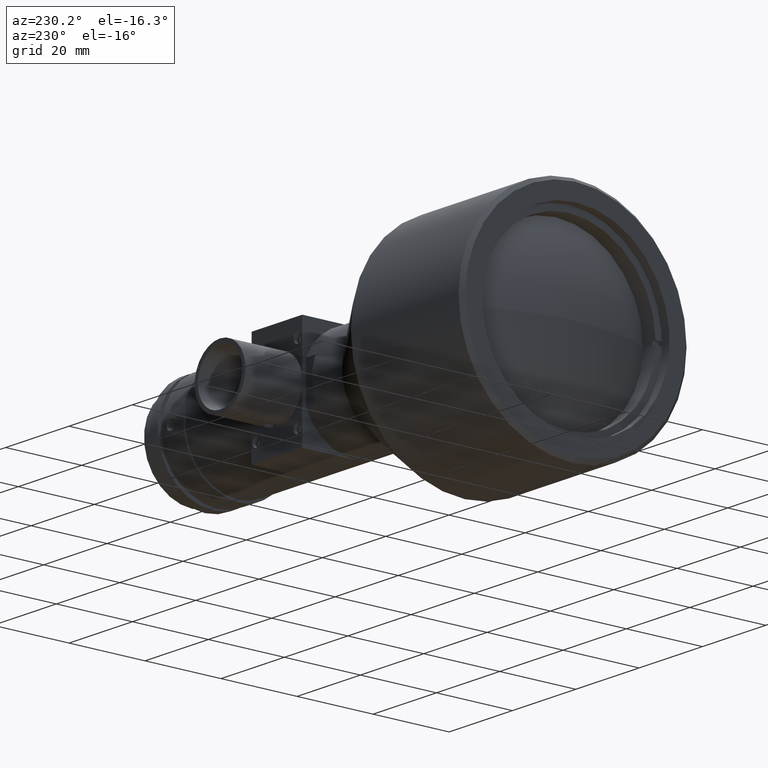
[diagram: clean part render]
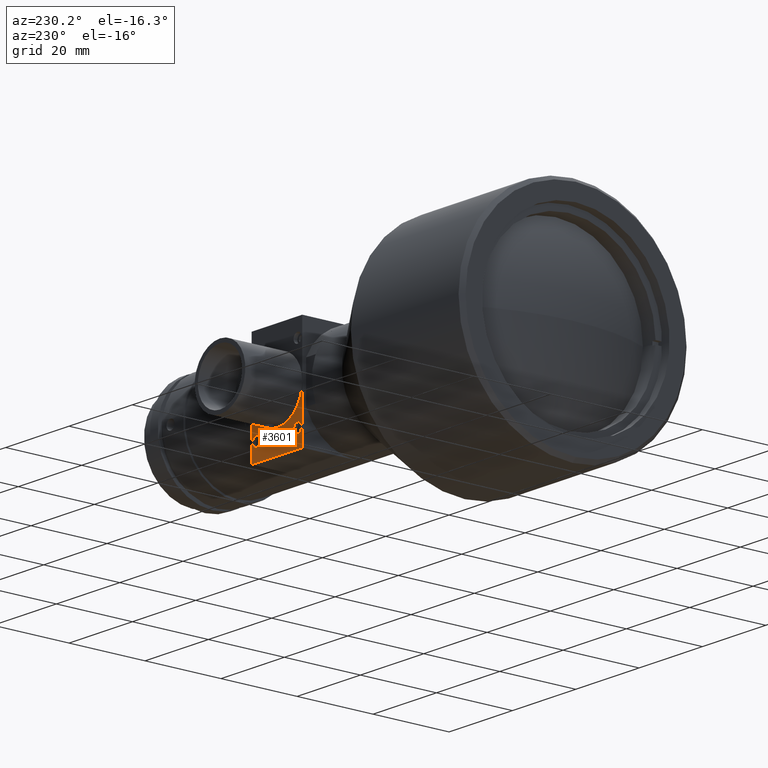
[diagram: same view with one face highlighted and labeled with its STEP entity id]
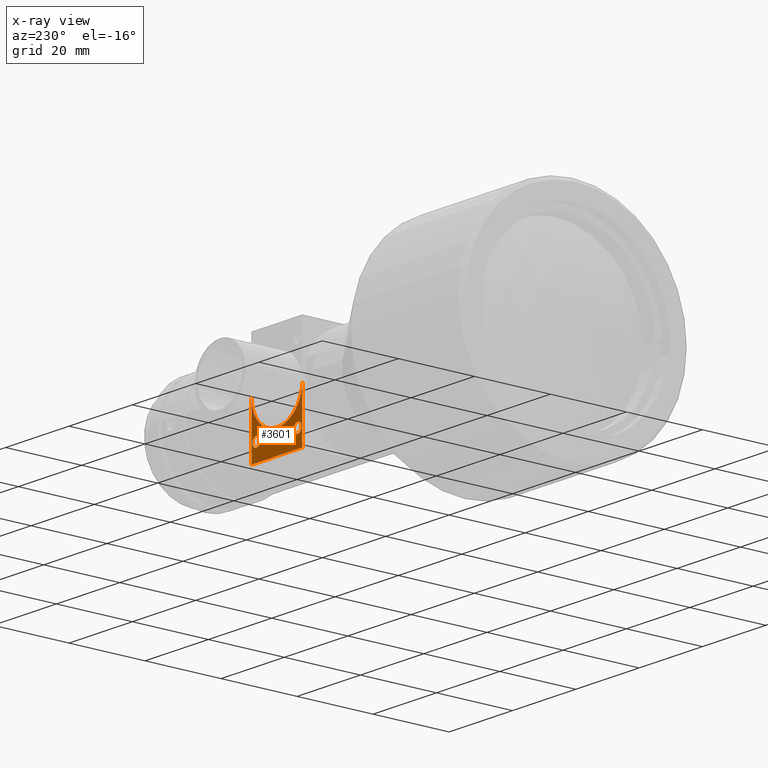
[diagram: x-ray of the same camera — body ghosted, the highlighted face saturated]
A machine part, auxiliary view. The second image highlights one B-rep face of the part: STEP entity #3601.
The next image is the same camera in x-ray: the body ghosted, the highlighted face saturated — about 1% of this face is hidden behind the body in this view.
In plain terms, the highlighted planar face has unit normal (0, 1, 0).
Its self-contained STEP definition (entity closure, byte-faithful):
#12 = CARTESIAN_POINT ( 'NONE',  ( 84.03999999999999200, 13.99999999999999800, -9.499999999999998200 ) ) ;
#92 = AXIS2_PLACEMENT_3D ( 'NONE', #2909, #1063, #3202 ) ;
#108 = EDGE_CURVE ( 'NONE', #3876, #2353, #1903, .T. ) ;
#199 = VERTEX_POINT ( 'NONE', #3779 ) ;
#210 = DIRECTION ( 'NONE',  ( -1.224646799147353200E-016, -1.000000000000000000, 0.0000000000000000000 ) ) ;
#214 = ORIENTED_EDGE ( 'NONE', *, *, #426, .F. ) ;
#232 = VERTEX_POINT ( 'NONE', #798 ) ;
#323 = FACE_OUTER_BOUND ( 'NONE', #1481, .T. ) ;
#328 = CIRCLE ( 'NONE', #2434, 1.249999999999999300 ) ;
#384 = ORIENTED_EDGE ( 'NONE', *, *, #831, .F. ) ;
#426 = EDGE_CURVE ( 'NONE', #3371, #3100, #2688, .T. ) ;
#447 = EDGE_CURVE ( 'NONE', #232, #199, #950, .T. ) ;
#498 = DIRECTION ( 'NONE',  ( 1.224646799147353200E-016, 1.000000000000000000, 0.0000000000000000000 ) ) ;
#512 = DIRECTION ( 'NONE',  ( 1.224646799147353200E-016, 1.000000000000000000, 0.0000000000000000000 ) ) ;
#587 = EDGE_CURVE ( 'NONE', #3876, #688, #2002, .T. ) ;
#688 = VERTEX_POINT ( 'NONE', #791 ) ;
#694 = DIRECTION ( 'NONE',  ( 1.000000000000000000, -1.224646799147353200E-016, -0.0000000000000000000 ) ) ;
#777 = AXIS2_PLACEMENT_3D ( 'NONE', #12, #2781, #2785 ) ;
#791 = CARTESIAN_POINT ( 'NONE',  ( 69.53999999999999200, 14.00000000000000000, -13.99999999999999800 ) ) ;
#798 = CARTESIAN_POINT ( 'NONE',  ( 84.03999999999999200, 13.99999999999999800, -8.249999999999998200 ) ) ;
#831 = EDGE_CURVE ( 'NONE', #199, #232, #1411, .T. ) ;
#878 = EDGE_LOOP ( 'NONE', ( #384, #3494 ) ) ;
#914 = EDGE_LOOP ( 'NONE', ( #1884, #214 ) ) ;
#950 = CIRCLE ( 'NONE', #3026, 1.249999999999999300 ) ;
#964 = VERTEX_POINT ( 'NONE', #1391 ) ;
#1047 = AXIS2_PLACEMENT_3D ( 'NONE', #1403, #210, #2040 ) ;
#1063 = DIRECTION ( 'NONE',  ( -1.224646799147353200E-016, -1.000000000000000000, 0.0000000000000000000 ) ) ;
#1149 = VECTOR ( 'NONE', #1548, 1000.000000000000000 ) ;
#1182 = VECTOR ( 'NONE', #2469, 1000.000000000000000 ) ;
#1185 = EDGE_CURVE ( 'NONE', #688, #964, #1467, .T. ) ;
#1225 = CARTESIAN_POINT ( 'NONE',  ( 69.53999999999999200, 14.00000000000000000, -13.99999999999999800 ) ) ;
#1385 = DIRECTION ( 'NONE',  ( 1.224646799147353200E-016, 1.000000000000000000, 0.0000000000000000000 ) ) ;
#1391 = CARTESIAN_POINT ( 'NONE',  ( 85.53999999999999200, 13.99999999999999600, -13.99999999999999800 ) ) ;
#1400 = CARTESIAN_POINT ( 'NONE',  ( 71.03999999999999200, 13.99999999999999800, -10.74999999999999800 ) ) ;
#1403 = CARTESIAN_POINT ( 'NONE',  ( 77.53999999999999200, 13.99999999999999800, -8.202876557370995200E-017 ) ) ;
#1411 = CIRCLE ( 'NONE', #777, 1.249999999999999300 ) ;
#1467 = LINE ( 'NONE', #2576, #3024 ) ;
#1481 = EDGE_LOOP ( 'NONE', ( #2098, #2233, #2084, #1912, #3739 ) ) ;
#1548 = DIRECTION ( 'NONE',  ( 0.0000000000000000000, 0.0000000000000000000, 1.000000000000000000 ) ) ;
#1849 = FACE_BOUND ( 'NONE', #878, .T. ) ;
#1884 = ORIENTED_EDGE ( 'NONE', *, *, #3040, .F. ) ;
#1903 = CIRCLE ( 'NONE', #1047, 8.000000000000000000 ) ;
#1912 = ORIENTED_EDGE ( 'NONE', *, *, #2799, .F. ) ;
#1941 = FACE_BOUND ( 'NONE', #914, .T. ) ;
#2002 = LINE ( 'NONE', #1225, #1182 ) ;
#2014 = CARTESIAN_POINT ( 'NONE',  ( 77.53999999999999200, 13.99999999999999800, -8.000000000000000000 ) ) ;
#2040 = DIRECTION ( 'NONE',  ( 0.0000000000000000000, 0.0000000000000000000, 1.000000000000000000 ) ) ;
#2084 = ORIENTED_EDGE ( 'NONE', *, *, #3890, .T. ) ;
#2098 = ORIENTED_EDGE ( 'NONE', *, *, #587, .F. ) ;
#2216 = CARTESIAN_POINT ( 'NONE',  ( 71.03999999999999200, 13.99999999999999800, -8.249999999999998200 ) ) ;
#2233 = ORIENTED_EDGE ( 'NONE', *, *, #108, .T. ) ;
#2279 = CARTESIAN_POINT ( 'NONE',  ( 69.53999999999999200, 14.00000000000000000, -8.202876557370995200E-017 ) ) ;
#2295 = DIRECTION ( 'NONE',  ( 1.224646799147353200E-016, 1.000000000000000000, 0.0000000000000000000 ) ) ;
#2338 = PLANE ( 'NONE',  #3097 ) ;
#2349 = CARTESIAN_POINT ( 'NONE',  ( 84.03999999999999200, 13.99999999999999800, -9.499999999999998200 ) ) ;
#2353 = VERTEX_POINT ( 'NONE', #2014 ) ;
#2421 = DIRECTION ( 'NONE',  ( 0.0000000000000000000, 0.0000000000000000000, -1.000000000000000000 ) ) ;
#2427 = CIRCLE ( 'NONE', #92, 8.000000000000000000 ) ;
#2434 = AXIS2_PLACEMENT_3D ( 'NONE', #3225, #1385, #3529 ) ;
#2469 = DIRECTION ( 'NONE',  ( 0.0000000000000000000, 0.0000000000000000000, -1.000000000000000000 ) ) ;
#2576 = CARTESIAN_POINT ( 'NONE',  ( 85.53999999999999200, 13.99999999999999600, -13.99999999999999800 ) ) ;
#2627 = AXIS2_PLACEMENT_3D ( 'NONE', #3057, #2295, #2421 ) ;
#2653 = DIRECTION ( 'NONE',  ( 0.0000000000000000000, 0.0000000000000000000, -1.000000000000000000 ) ) ;
#2658 = DIRECTION ( 'NONE',  ( 0.0000000000000000000, 0.0000000000000000000, -1.000000000000000000 ) ) ;
#2688 = CIRCLE ( 'NONE', #2627, 1.249999999999999300 ) ;
#2781 = DIRECTION ( 'NONE',  ( 1.224646799147353200E-016, 1.000000000000000000, 0.0000000000000000000 ) ) ;
#2785 = DIRECTION ( 'NONE',  ( 0.0000000000000000000, 0.0000000000000000000, -1.000000000000000000 ) ) ;
#2799 = EDGE_CURVE ( 'NONE', #964, #3551, #3592, .T. ) ;
#2909 = CARTESIAN_POINT ( 'NONE',  ( 77.53999999999999200, 13.99999999999999800, -8.202876557370995200E-017 ) ) ;
#2929 = CARTESIAN_POINT ( 'NONE',  ( 85.53999999999999200, 13.99999999999999600, -8.202876557370995200E-017 ) ) ;
#3024 = VECTOR ( 'NONE', #694, 1000.000000000000000 ) ;
#3026 = AXIS2_PLACEMENT_3D ( 'NONE', #2349, #512, #2658 ) ;
#3040 = EDGE_CURVE ( 'NONE', #3100, #3371, #328, .T. ) ;
#3057 = CARTESIAN_POINT ( 'NONE',  ( 71.03999999999999200, 13.99999999999999800, -9.499999999999998200 ) ) ;
#3091 = CARTESIAN_POINT ( 'NONE',  ( 85.53999999999999200, 13.99999999999999600, -13.99999999999999800 ) ) ;
#3097 = AXIS2_PLACEMENT_3D ( 'NONE', #3839, #498, #2653 ) ;
#3100 = VERTEX_POINT ( 'NONE', #1400 ) ;
#3202 = DIRECTION ( 'NONE',  ( 0.0000000000000000000, 0.0000000000000000000, 1.000000000000000000 ) ) ;
#3225 = CARTESIAN_POINT ( 'NONE',  ( 71.03999999999999200, 13.99999999999999800, -9.499999999999998200 ) ) ;
#3371 = VERTEX_POINT ( 'NONE', #2216 ) ;
#3494 = ORIENTED_EDGE ( 'NONE', *, *, #447, .F. ) ;
#3529 = DIRECTION ( 'NONE',  ( 0.0000000000000000000, 0.0000000000000000000, -1.000000000000000000 ) ) ;
#3551 = VERTEX_POINT ( 'NONE', #2929 ) ;
#3592 = LINE ( 'NONE', #3091, #1149 ) ;
#3601 = ADVANCED_FACE ( 'NONE', ( #1849, #1941, #323 ), #2338, .T. ) ;
#3739 = ORIENTED_EDGE ( 'NONE', *, *, #1185, .F. ) ;
#3779 = CARTESIAN_POINT ( 'NONE',  ( 84.03999999999999200, 13.99999999999999800, -10.74999999999999800 ) ) ;
#3839 = CARTESIAN_POINT ( 'NONE',  ( 69.53999999999999200, 14.00000000000000000, 14.00000000000000200 ) ) ;
#3876 = VERTEX_POINT ( 'NONE', #2279 ) ;
#3890 = EDGE_CURVE ( 'NONE', #2353, #3551, #2427, .T. ) ;